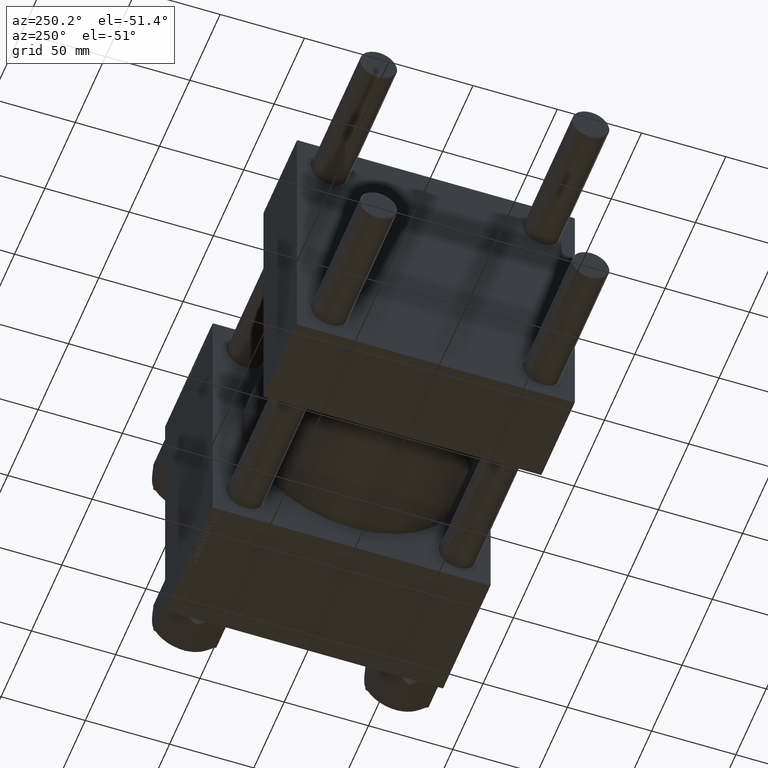
[diagram: clean part render]
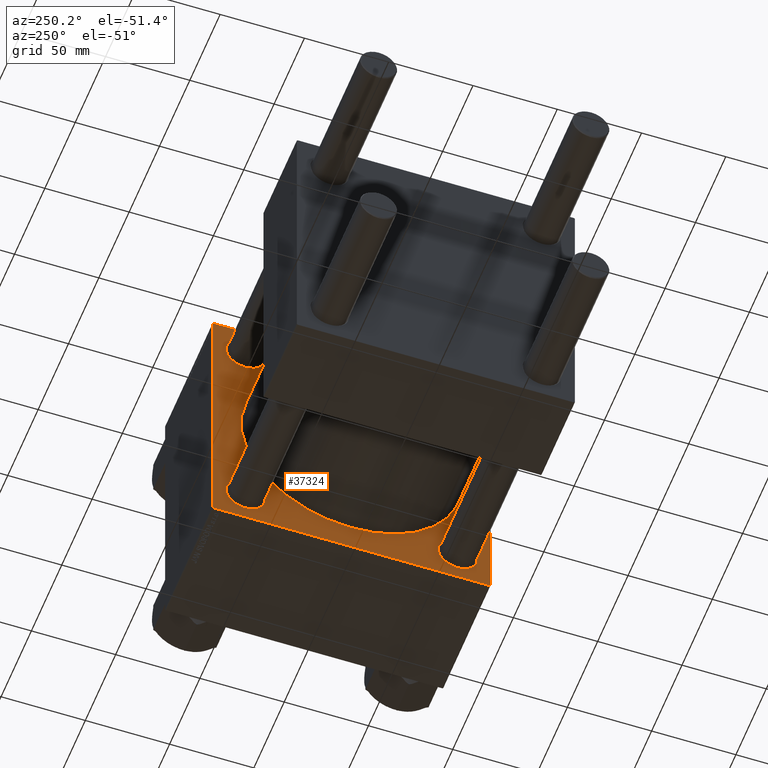
[diagram: same view with one face highlighted and labeled with its STEP entity id]
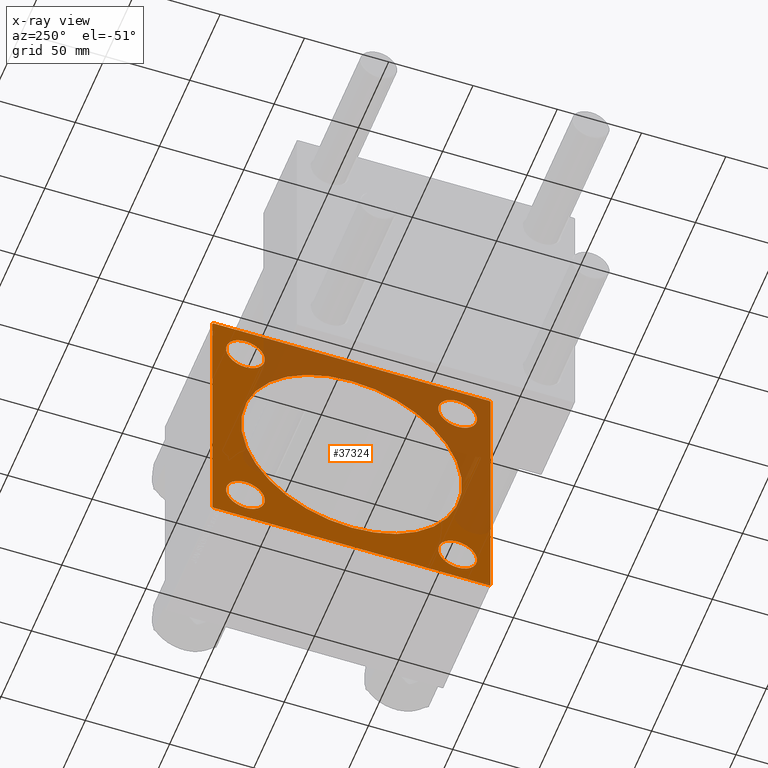
[diagram: x-ray of the same camera — body ghosted, the highlighted face saturated]
A machine part, auxiliary view. The second image highlights one B-rep face of the part: STEP entity #37324.
The next image is the same camera in x-ray: the body ghosted, the highlighted face saturated — about 42% of this face is hidden behind the body in this view.
In plain terms, the highlighted planar face has unit normal (-1, 0, 0).
Its self-contained STEP definition (entity closure, byte-faithful):
#45 = EDGE_CURVE ( 'NONE', #49122, #50000, #9830, .T. ) ;
#357 = DIRECTION ( 'NONE',  ( 0.000000000000000000, 0.000000000000000000, 1.000000000000000000 ) ) ;
#555 = DIRECTION ( 'NONE',  ( 0.000000000000000000, 0.000000000000000000, 1.000000000000000000 ) ) ;
#1396 = LINE ( 'NONE', #9281, #17632 ) ;
#2561 = VERTEX_POINT ( 'NONE', #20232 ) ;
#2940 = CIRCLE ( 'NONE', #36226, 11.49999999999989875 ) ;
#2988 = EDGE_LOOP ( 'NONE', ( #29411, #35885 ) ) ;
#3217 = CIRCLE ( 'NONE', #31646, 11.49999999999989875 ) ;
#3535 = EDGE_CURVE ( 'NONE', #15611, #30503, #39977, .T. ) ;
#3638 = EDGE_CURVE ( 'NONE', #20721, #22159, #27049, .T. ) ;
#3680 = DIRECTION ( 'NONE',  ( 0.000000000000000000, -1.000000000000000000, -1.682156097916904081E-16 ) ) ;
#3693 = FACE_BOUND ( 'NONE', #19870, .T. ) ;
#3853 = VERTEX_POINT ( 'NONE', #10250 ) ;
#4069 = CARTESIAN_POINT ( 'NONE',  ( 139.0000000000000000, -62.94999999999998153, -62.95000000000001705 ) ) ;
#4641 = EDGE_CURVE ( 'NONE', #50000, #49122, #13231, .T. ) ;
#4908 = LINE ( 'NONE', #31611, #34714 ) ;
#5035 = CARTESIAN_POINT ( 'NONE',  ( 139.0000000000000000, -81.99999999999990052, 82.49999999999997158 ) ) ;
#5092 = AXIS2_PLACEMENT_3D ( 'NONE', #39319, #15940, #31446 ) ;
#5369 = ORIENTED_EDGE ( 'NONE', *, *, #3638, .F. ) ;
#5558 = DIRECTION ( 'NONE',  ( 0.000000000000000000, 0.000000000000000000, 1.000000000000000000 ) ) ;
#5614 = DIRECTION ( 'NONE',  ( 0.000000000000000000, 0.000000000000000000, -1.000000000000000000 ) ) ;
#5969 = CARTESIAN_POINT ( 'NONE',  ( 139.0000000000000000, -82.49999999999997158, 82.49999999999997158 ) ) ;
#5996 = CARTESIAN_POINT ( 'NONE',  ( 139.0000000000000000, 82.25000000000001421, 82.25000000000001421 ) ) ;
#6306 = EDGE_CURVE ( 'NONE', #46500, #25851, #14484, .T. ) ;
#6429 = LINE ( 'NONE', #14555, #46541 ) ;
#6542 = CARTESIAN_POINT ( 'NONE',  ( 139.0000000000000000, -62.94999999999998153, -74.44999999999991758 ) ) ;
#6545 = VERTEX_POINT ( 'NONE', #6542 ) ;
#6766 = CARTESIAN_POINT ( 'NONE',  ( 139.0000000000000000, -82.49999999999997158, 81.99999999999991473 ) ) ;
#6794 = CARTESIAN_POINT ( 'NONE',  ( 139.0000000000000000, 82.50000000000001421, 82.00000000000002842 ) ) ;
#6950 = DIRECTION ( 'NONE',  ( 1.000000000000000000, 0.000000000000000000, 0.000000000000000000 ) ) ;
#7166 = VERTEX_POINT ( 'NONE', #49826 ) ;
#7199 = CARTESIAN_POINT ( 'NONE',  ( 139.0000000000000000, 0.000000000000000000, 0.000000000000000000 ) ) ;
#7376 = CARTESIAN_POINT ( 'NONE',  ( 139.0000000000000000, -62.94999999999998153, -62.95000000000001705 ) ) ;
#7584 = VERTEX_POINT ( 'NONE', #22709 ) ;
#7839 = CARTESIAN_POINT ( 'NONE',  ( 139.0000000000000000, 0.000000000000000000, 65.50000000000001421 ) ) ;
#8006 = AXIS2_PLACEMENT_3D ( 'NONE', #7376, #41711, #23122 ) ;
#8188 = CARTESIAN_POINT ( 'NONE',  ( 139.0000000000000000, 62.95000000000000284, 74.44999999999990337 ) ) ;
#8469 = ORIENTED_EDGE ( 'NONE', *, *, #36445, .T. ) ;
#8624 = AXIS2_PLACEMENT_3D ( 'NONE', #31139, #46659, #357 ) ;
#9134 = AXIS2_PLACEMENT_3D ( 'NONE', #37754, #30122, #44913 ) ;
#9281 = CARTESIAN_POINT ( 'NONE',  ( 139.0000000000000000, -82.24999999999880629, 82.25000000000108002 ) ) ;
#9554 = AXIS2_PLACEMENT_3D ( 'NONE', #40738, #48612, #41912 ) ;
#9555 = VERTEX_POINT ( 'NONE', #9834 ) ;
#9830 = CIRCLE ( 'NONE', #49636, 11.49999999999989875 ) ;
#9834 = CARTESIAN_POINT ( 'NONE',  ( 139.0000000000000000, 62.95000000000000284, -74.44999999999990337 ) ) ;
#9962 = VECTOR ( 'NONE', #3680, 1000.000000000000000 ) ;
#10250 = CARTESIAN_POINT ( 'NONE',  ( 139.0000000000000000, 62.95000000000000284, -51.45000000000010942 ) ) ;
#10559 = EDGE_CURVE ( 'NONE', #17770, #7584, #40803, .T. ) ;
#12084 = EDGE_LOOP ( 'NONE', ( #8469, #43562 ) ) ;
#12468 = VERTEX_POINT ( 'NONE', #34311 ) ;
#12853 = EDGE_LOOP ( 'NONE', ( #25925, #46388, #30481, #25175, #5369, #43452, #36237, #41627 ) ) ;
#12905 = CARTESIAN_POINT ( 'NONE',  ( 139.0000000000000000, 82.00000000000004263, 82.50000000000000000 ) ) ;
#13203 = ORIENTED_EDGE ( 'NONE', *, *, #49167, .T. ) ;
#13231 = CIRCLE ( 'NONE', #5092, 11.49999999999989875 ) ;
#13251 = ORIENTED_EDGE ( 'NONE', *, *, #47274, .T. ) ;
#13934 = DIRECTION ( 'NONE',  ( 1.000000000000000000, 0.000000000000000000, -0.000000000000000000 ) ) ;
#14484 = LINE ( 'NONE', #21612, #42525 ) ;
#14555 = CARTESIAN_POINT ( 'NONE',  ( 139.0000000000000000, -82.25000000000116529, -82.24999999999889155 ) ) ;
#14808 = CARTESIAN_POINT ( 'NONE',  ( 139.0000000000000000, -62.94999999999998153, 62.95000000000001705 ) ) ;
#15135 = FACE_BOUND ( 'NONE', #12084, .T. ) ;
#15252 = ORIENTED_EDGE ( 'NONE', *, *, #49027, .T. ) ;
#15611 = VERTEX_POINT ( 'NONE', #7839 ) ;
#15635 = PLANE ( 'NONE',  #8624 ) ;
#15940 = DIRECTION ( 'NONE',  ( 1.000000000000000000, 0.000000000000000000, -0.000000000000000000 ) ) ;
#16027 = ORIENTED_EDGE ( 'NONE', *, *, #48048, .T. ) ;
#16243 = ORIENTED_EDGE ( 'NONE', *, *, #3535, .T. ) ;
#16954 = DIRECTION ( 'NONE',  ( 1.000000000000000000, 0.000000000000000000, -0.000000000000000000 ) ) ;
#17117 = EDGE_CURVE ( 'NONE', #17770, #22159, #1396, .T. ) ;
#17632 = VECTOR ( 'NONE', #28600, 1000.000000000000114 ) ;
#17770 = VERTEX_POINT ( 'NONE', #6766 ) ;
#18026 = EDGE_CURVE ( 'NONE', #25851, #44763, #4908, .T. ) ;
#18378 = DIRECTION ( 'NONE',  ( 1.000000000000000000, 0.000000000000000000, -0.000000000000000000 ) ) ;
#18652 = CIRCLE ( 'NONE', #39777, 65.50000000000001421 ) ;
#19870 = EDGE_LOOP ( 'NONE', ( #16243, #15252 ) ) ;
#20157 = LINE ( 'NONE', #31598, #20962 ) ;
#20212 = CIRCLE ( 'NONE', #8006, 11.49999999999989875 ) ;
#20232 = CARTESIAN_POINT ( 'NONE',  ( 139.0000000000000000, -62.94999999999998153, 51.45000000000012363 ) ) ;
#20721 = VERTEX_POINT ( 'NONE', #12905 ) ;
#20901 = EDGE_CURVE ( 'NONE', #44763, #7166, #20157, .T. ) ;
#20962 = VECTOR ( 'NONE', #42549, 1000.000000000000000 ) ;
#21612 = CARTESIAN_POINT ( 'NONE',  ( 139.0000000000000000, 82.50000000000001421, 82.50000000000000000 ) ) ;
#22159 = VERTEX_POINT ( 'NONE', #5035 ) ;
#22709 = CARTESIAN_POINT ( 'NONE',  ( 139.0000000000000000, -82.50000000000000000, -82.00000000000005684 ) ) ;
#23122 = DIRECTION ( 'NONE',  ( 0.000000000000000000, 0.000000000000000000, 1.000000000000000000 ) ) ;
#23218 = DIRECTION ( 'NONE',  ( -0.000000000000000000, -0.7071067811865474617, -0.7071067811865474617 ) ) ;
#24901 = CARTESIAN_POINT ( 'NONE',  ( 139.0000000000000000, 82.00000000000004263, -82.50000000000002842 ) ) ;
#25175 = ORIENTED_EDGE ( 'NONE', *, *, #17117, .T. ) ;
#25349 = EDGE_CURVE ( 'NONE', #7166, #7584, #6429, .T. ) ;
#25365 = CARTESIAN_POINT ( 'NONE',  ( 139.0000000000000000, 62.95000000000000284, 62.95000000000000284 ) ) ;
#25851 = VERTEX_POINT ( 'NONE', #45219 ) ;
#25894 = CIRCLE ( 'NONE', #50290, 11.49999999999989875 ) ;
#25925 = ORIENTED_EDGE ( 'NONE', *, *, #20901, .T. ) ;
#26040 = DIRECTION ( 'NONE',  ( 0.000000000000000000, 0.7071067811865474617, -0.7071067811865474617 ) ) ;
#26557 = VECTOR ( 'NONE', #26040, 1000.000000000000114 ) ;
#27049 = LINE ( 'NONE', #35190, #9962 ) ;
#27292 = ORIENTED_EDGE ( 'NONE', *, *, #43750, .T. ) ;
#28600 = DIRECTION ( 'NONE',  ( -0.000000000000000000, 0.7071067811865573427, 0.7071067811865376918 ) ) ;
#29201 = CARTESIAN_POINT ( 'NONE',  ( 139.0000000000000000, 8.021436534415164826E-15, -65.50000000000001421 ) ) ;
#29411 = ORIENTED_EDGE ( 'NONE', *, *, #45, .T. ) ;
#29562 = DIRECTION ( 'NONE',  ( 0.000000000000000000, -0.7071067811865376918, 0.7071067811865574537 ) ) ;
#30122 = DIRECTION ( 'NONE',  ( 1.000000000000000000, 0.000000000000000000, 0.000000000000000000 ) ) ;
#30310 = DIRECTION ( 'NONE',  ( 0.000000000000000000, 0.000000000000000000, 1.000000000000000000 ) ) ;
#30481 = ORIENTED_EDGE ( 'NONE', *, *, #10559, .F. ) ;
#30503 = VERTEX_POINT ( 'NONE', #29201 ) ;
#31139 = CARTESIAN_POINT ( 'NONE',  ( 139.0000000000000000, 0.000000000000000000, 0.000000000000000000 ) ) ;
#31446 = DIRECTION ( 'NONE',  ( 0.000000000000000000, 0.000000000000000000, 1.000000000000000000 ) ) ;
#31459 = CIRCLE ( 'NONE', #9554, 11.49999999999989875 ) ;
#31598 = CARTESIAN_POINT ( 'NONE',  ( 139.0000000000000000, 82.50000000000001421, -82.50000000000002842 ) ) ;
#31611 = CARTESIAN_POINT ( 'NONE',  ( 139.0000000000000000, 82.25000000000002842, -82.25000000000002842 ) ) ;
#31646 = AXIS2_PLACEMENT_3D ( 'NONE', #36158, #47103, #555 ) ;
#32270 = CIRCLE ( 'NONE', #38758, 11.49999999999989875 ) ;
#32457 = DIRECTION ( 'NONE',  ( 0.000000000000000000, 0.000000000000000000, 1.000000000000000000 ) ) ;
#32598 = CARTESIAN_POINT ( 'NONE',  ( 139.0000000000000000, 62.95000000000000284, 51.45000000000010942 ) ) ;
#32752 = EDGE_LOOP ( 'NONE', ( #13203, #27292 ) ) ;
#34311 = CARTESIAN_POINT ( 'NONE',  ( 139.0000000000000000, -62.94999999999998153, 74.44999999999991758 ) ) ;
#34714 = VECTOR ( 'NONE', #23218, 1000.000000000000114 ) ;
#35190 = CARTESIAN_POINT ( 'NONE',  ( 139.0000000000000000, 82.50000000000001421, 82.50000000000000000 ) ) ;
#35200 = FACE_BOUND ( 'NONE', #41438, .T. ) ;
#35243 = VECTOR ( 'NONE', #36991, 1000.000000000000000 ) ;
#35885 = ORIENTED_EDGE ( 'NONE', *, *, #4641, .T. ) ;
#36158 = CARTESIAN_POINT ( 'NONE',  ( 139.0000000000000000, 62.95000000000000284, -62.95000000000000284 ) ) ;
#36226 = AXIS2_PLACEMENT_3D ( 'NONE', #44163, #16954, #32457 ) ;
#36237 = ORIENTED_EDGE ( 'NONE', *, *, #6306, .T. ) ;
#36445 = EDGE_CURVE ( 'NONE', #12468, #2561, #2940, .T. ) ;
#36991 = DIRECTION ( 'NONE',  ( 0.000000000000000000, -1.682156097916903834E-16, -1.000000000000000000 ) ) ;
#37324 = ADVANCED_FACE ( 'NONE', ( #15135, #49965, #38511, #35200, #3693, #46413 ), #15635, .T. ) ;
#37754 = CARTESIAN_POINT ( 'NONE',  ( 139.0000000000000000, 0.000000000000000000, 0.000000000000000000 ) ) ;
#38212 = DIRECTION ( 'NONE',  ( 0.000000000000000000, 0.000000000000000000, -1.000000000000000000 ) ) ;
#38511 = FACE_BOUND ( 'NONE', #32752, .T. ) ;
#38758 = AXIS2_PLACEMENT_3D ( 'NONE', #14808, #18378, #30310 ) ;
#39319 = CARTESIAN_POINT ( 'NONE',  ( 139.0000000000000000, 62.95000000000000284, 62.95000000000000284 ) ) ;
#39600 = EDGE_CURVE ( 'NONE', #2561, #12468, #32270, .T. ) ;
#39777 = AXIS2_PLACEMENT_3D ( 'NONE', #7199, #6950, #38212 ) ;
#39977 = CIRCLE ( 'NONE', #9134, 65.50000000000001421 ) ;
#40738 = CARTESIAN_POINT ( 'NONE',  ( 139.0000000000000000, 62.95000000000000284, -62.95000000000000284 ) ) ;
#40803 = LINE ( 'NONE', #5969, #35243 ) ;
#41438 = EDGE_LOOP ( 'NONE', ( #16027, #13251 ) ) ;
#41627 = ORIENTED_EDGE ( 'NONE', *, *, #18026, .T. ) ;
#41711 = DIRECTION ( 'NONE',  ( 1.000000000000000000, 0.000000000000000000, -0.000000000000000000 ) ) ;
#41912 = DIRECTION ( 'NONE',  ( 0.000000000000000000, 0.000000000000000000, 1.000000000000000000 ) ) ;
#42175 = EDGE_CURVE ( 'NONE', #20721, #46500, #44661, .T. ) ;
#42249 = VERTEX_POINT ( 'NONE', #48454 ) ;
#42525 = VECTOR ( 'NONE', #5614, 1000.000000000000000 ) ;
#42549 = DIRECTION ( 'NONE',  ( 0.000000000000000000, -1.000000000000000000, 0.000000000000000000 ) ) ;
#43452 = ORIENTED_EDGE ( 'NONE', *, *, #42175, .T. ) ;
#43562 = ORIENTED_EDGE ( 'NONE', *, *, #39600, .T. ) ;
#43750 = EDGE_CURVE ( 'NONE', #9555, #3853, #31459, .T. ) ;
#44163 = CARTESIAN_POINT ( 'NONE',  ( 139.0000000000000000, -62.94999999999998153, 62.95000000000001705 ) ) ;
#44661 = LINE ( 'NONE', #5996, #26557 ) ;
#44763 = VERTEX_POINT ( 'NONE', #24901 ) ;
#44913 = DIRECTION ( 'NONE',  ( 0.000000000000000000, 0.000000000000000000, -1.000000000000000000 ) ) ;
#45219 = CARTESIAN_POINT ( 'NONE',  ( 139.0000000000000000, 82.50000000000001421, -82.00000000000005684 ) ) ;
#45795 = DIRECTION ( 'NONE',  ( 1.000000000000000000, 0.000000000000000000, -0.000000000000000000 ) ) ;
#46388 = ORIENTED_EDGE ( 'NONE', *, *, #25349, .T. ) ;
#46413 = FACE_OUTER_BOUND ( 'NONE', #12853, .T. ) ;
#46500 = VERTEX_POINT ( 'NONE', #6794 ) ;
#46535 = DIRECTION ( 'NONE',  ( 0.000000000000000000, 0.000000000000000000, 1.000000000000000000 ) ) ;
#46541 = VECTOR ( 'NONE', #29562, 999.9999999999998863 ) ;
#46659 = DIRECTION ( 'NONE',  ( -1.000000000000000000, -0.000000000000000000, 0.000000000000000000 ) ) ;
#47103 = DIRECTION ( 'NONE',  ( 1.000000000000000000, 0.000000000000000000, -0.000000000000000000 ) ) ;
#47274 = EDGE_CURVE ( 'NONE', #6545, #42249, #20212, .T. ) ;
#48048 = EDGE_CURVE ( 'NONE', #42249, #6545, #25894, .T. ) ;
#48454 = CARTESIAN_POINT ( 'NONE',  ( 139.0000000000000000, -62.94999999999998153, -51.45000000000012363 ) ) ;
#48612 = DIRECTION ( 'NONE',  ( 1.000000000000000000, 0.000000000000000000, -0.000000000000000000 ) ) ;
#49027 = EDGE_CURVE ( 'NONE', #30503, #15611, #18652, .T. ) ;
#49122 = VERTEX_POINT ( 'NONE', #8188 ) ;
#49167 = EDGE_CURVE ( 'NONE', #3853, #9555, #3217, .T. ) ;
#49636 = AXIS2_PLACEMENT_3D ( 'NONE', #25365, #13934, #5558 ) ;
#49826 = CARTESIAN_POINT ( 'NONE',  ( 139.0000000000000000, -82.00000000000004263, -82.50000000000002842 ) ) ;
#49965 = FACE_BOUND ( 'NONE', #2988, .T. ) ;
#50000 = VERTEX_POINT ( 'NONE', #32598 ) ;
#50290 = AXIS2_PLACEMENT_3D ( 'NONE', #4069, #45795, #46535 ) ;